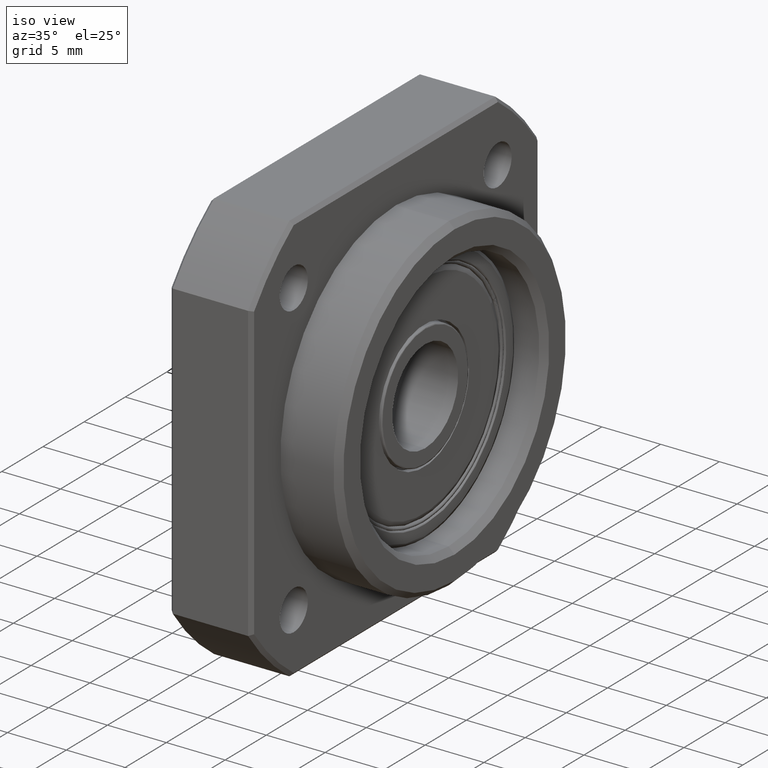
[diagram: clean part render]
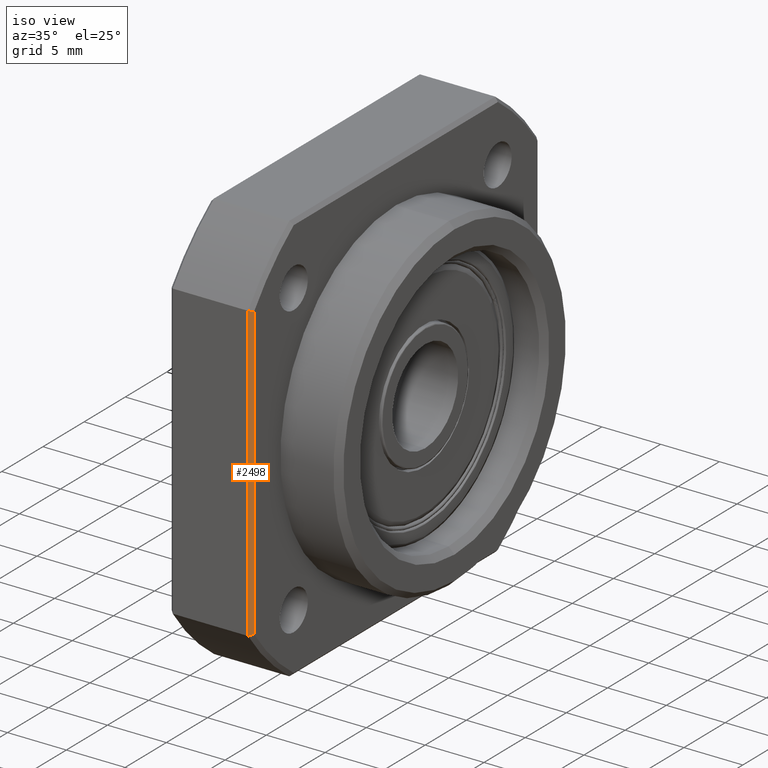
[diagram: same view with one face highlighted and labeled with its STEP entity id]
A machine part, iso view. The second image highlights one B-rep face of the part: STEP entity #2498.
In plain terms, the highlighted planar face has unit normal (0.7071, -0.7071, 0).
Its self-contained STEP definition (entity closure, byte-faithful):
#59 = CARTESIAN_POINT ( 'NONE',  ( 7.000000000000002700, -17.20000000000000600, 12.39354670786372700 ) ) ;
#107 = CARTESIAN_POINT ( 'NONE',  ( 6.900019152900657800, -17.29998084709935200, -12.42581538751002400 ) ) ;
#225 = EDGE_CURVE ( 'NONE', #1770, #1729, #1930, .T. ) ;
#290 = CARTESIAN_POINT ( 'NONE',  ( 6.700000000000011700, -17.50000000000000400, 12.48999599679679000 ) ) ;
#338 = EDGE_CURVE ( 'NONE', #1962, #1729, #6394, .T. ) ;
#373 = EDGE_CURVE ( 'NONE', #3995, #1962, #619, .T. ) ;
#476 = EDGE_CURVE ( 'NONE', #3995, #1770, #6333, .T. ) ;
#619 = B_SPLINE_CURVE_WITH_KNOTS ( 'NONE', 3,
 ( #4431, #107, #4969, #960 ),
 .UNSPECIFIED., .F., .F.,
 ( 4, 4 ),
 ( 8.673617379884035500E-019, 0.0004350890315046906200 ),
 .UNSPECIFIED. ) ;
#960 = CARTESIAN_POINT ( 'NONE',  ( 6.700000000000011700, -17.50000000000000400, -12.48999599679679300 ) ) ;
#1729 = VERTEX_POINT ( 'NONE', #290 ) ;
#1770 = VERTEX_POINT ( 'NONE', #59 ) ;
#1930 = B_SPLINE_CURVE_WITH_KNOTS ( 'NONE', 3,
 ( #2500, #2635, #3007, #5216 ),
 .UNSPECIFIED., .F., .F.,
 ( 4, 4 ),
 ( 3.878959614448864200E-018, 0.0004350890315046846000 ),
 .UNSPECIFIED. ) ;
#1962 = VERTEX_POINT ( 'NONE', #6334 ) ;
#2498 = ADVANCED_FACE ( 'NONE', ( #4620 ), #5767, .T. ) ;
#2500 = CARTESIAN_POINT ( 'NONE',  ( 7.000000000000002700, -17.20000000000000600, 12.39354670786372700 ) ) ;
#2635 = CARTESIAN_POINT ( 'NONE',  ( 6.900019152900655200, -17.29998084709935200, 12.42581538751002400 ) ) ;
#2669 = DIRECTION ( 'NONE',  ( -0.0000000000000000000, 0.0000000000000000000, 1.000000000000000000 ) ) ;
#2913 = CARTESIAN_POINT ( 'NONE',  ( 7.000000000000000900, -17.20000000000001000, 0.0000000000000000000 ) ) ;
#3007 = CARTESIAN_POINT ( 'NONE',  ( 6.800018942298717800, -17.39998105770129300, 12.45796429964513800 ) ) ;
#3024 = ORIENTED_EDGE ( 'NONE', *, *, #338, .F. ) ;
#3576 = AXIS2_PLACEMENT_3D ( 'NONE', #5792, #5754, #5741 ) ;
#3768 = CARTESIAN_POINT ( 'NONE',  ( 7.000000000000004400, -17.20000000000000600, -12.39354670786372700 ) ) ;
#3995 = VERTEX_POINT ( 'NONE', #3768 ) ;
#4001 = ORIENTED_EDGE ( 'NONE', *, *, #225, .T. ) ;
#4032 = EDGE_LOOP ( 'NONE', ( #4001, #3024, #4383, #4465 ) ) ;
#4377 = CARTESIAN_POINT ( 'NONE',  ( 6.700000000000011700, -17.50000000000000700, -17.49999999999994300 ) ) ;
#4383 = ORIENTED_EDGE ( 'NONE', *, *, #373, .F. ) ;
#4431 = CARTESIAN_POINT ( 'NONE',  ( 7.000000000000004400, -17.20000000000000600, -12.39354670786372700 ) ) ;
#4465 = ORIENTED_EDGE ( 'NONE', *, *, #476, .T. ) ;
#4600 = DIRECTION ( 'NONE',  ( 0.0000000000000000000, 0.0000000000000000000, 1.000000000000000000 ) ) ;
#4620 = FACE_OUTER_BOUND ( 'NONE', #4032, .T. ) ;
#4969 = CARTESIAN_POINT ( 'NONE',  ( 6.800018942298720500, -17.39998105770128900, -12.45796429964513200 ) ) ;
#5216 = CARTESIAN_POINT ( 'NONE',  ( 6.700000000000011700, -17.50000000000000400, 12.48999599679679000 ) ) ;
#5741 = DIRECTION ( 'NONE',  ( 0.7071067811865414700, 0.7071067811865536800, 0.0000000000000000000 ) ) ;
#5754 = DIRECTION ( 'NONE',  ( 0.7071067811865536800, -0.7071067811865414700, 0.0000000000000000000 ) ) ;
#5767 = PLANE ( 'NONE',  #3576 ) ;
#5792 = CARTESIAN_POINT ( 'NONE',  ( 6.700000000000004600, -17.50000000000000700, -17.49999999999994300 ) ) ;
#6316 = VECTOR ( 'NONE', #4600, 1000.000000000000000 ) ;
#6333 = LINE ( 'NONE', #2913, #6316 ) ;
#6334 = CARTESIAN_POINT ( 'NONE',  ( 6.700000000000011700, -17.50000000000000400, -12.48999599679679300 ) ) ;
#6386 = VECTOR ( 'NONE', #2669, 1000.000000000000000 ) ;
#6394 = LINE ( 'NONE', #4377, #6386 ) ;